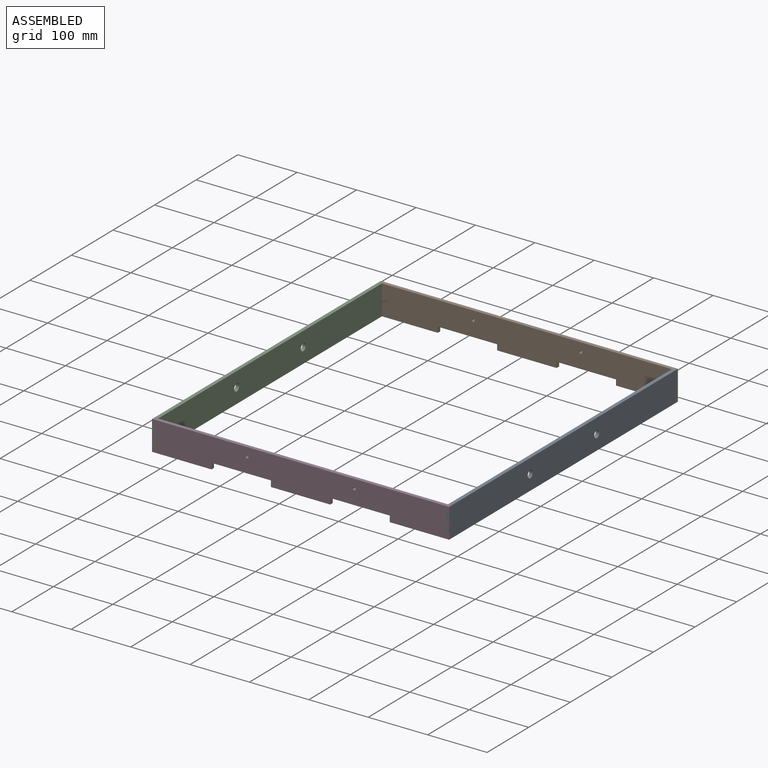
[diagram: assembled view]
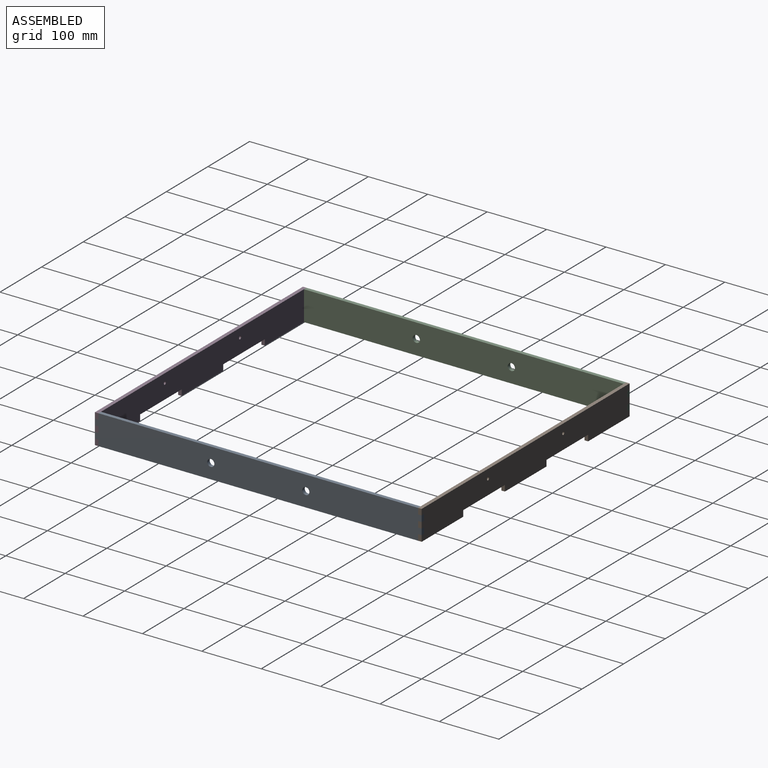
[diagram: assembled view, second angle]
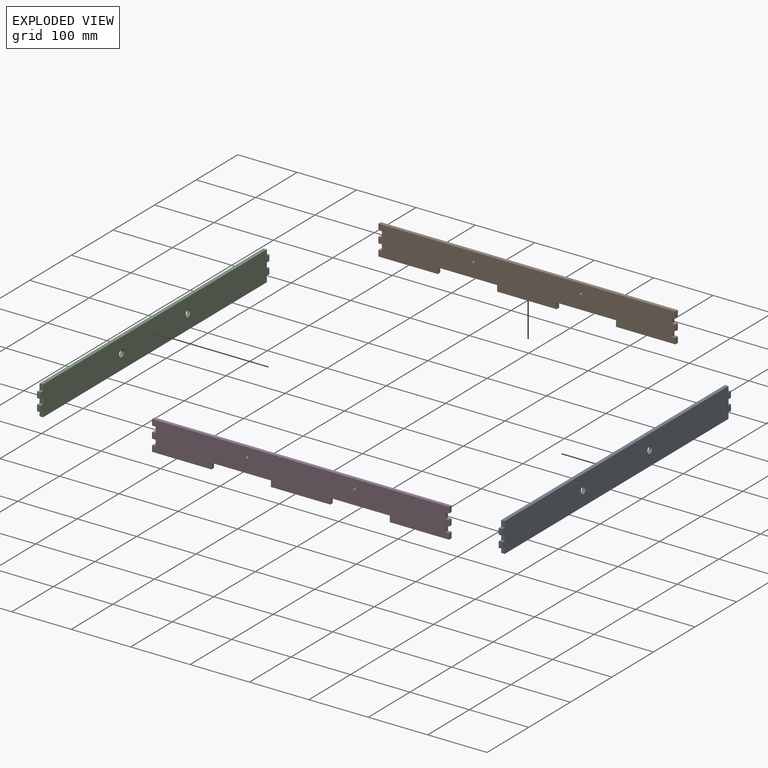
[diagram: exploded view]
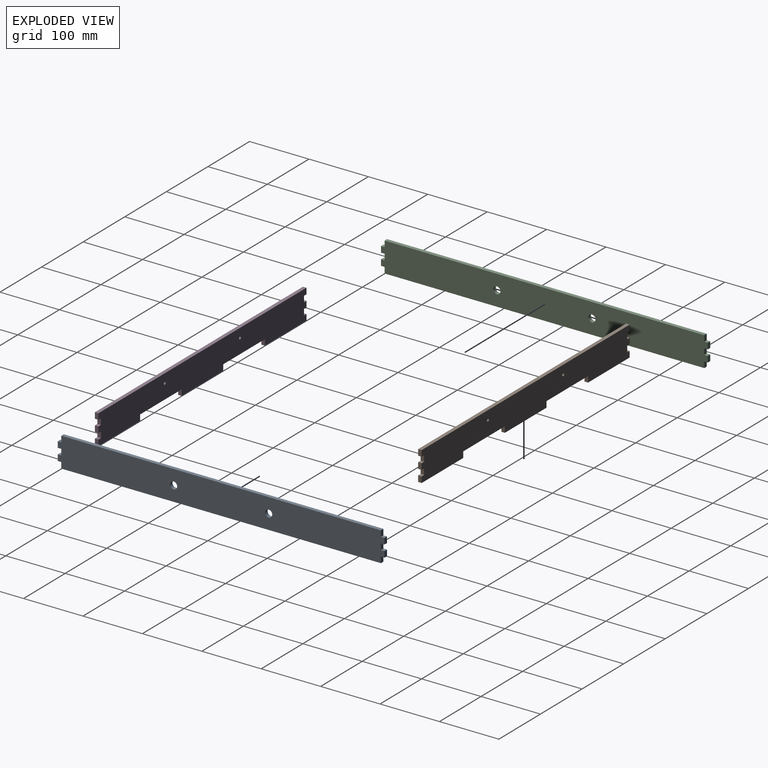
[diagram: exploded view, second angle]
ASSEMBLY  parts=4 mates=3
PART A: 24 faces, bbox 6x550x50 mm
  f0: plane 6x6mm, normal (0,0,1), area 36mm2, adj f1,f20,f22,f23
  f1: plane 10x6mm, normal (0,1,0), area 60mm2, adj f0,f2,f22,f23
  f2: plane 538x6mm, normal (0,0,1), area 3228mm2, adj f1,f3,f22,f23
  f3: plane 10x6mm, normal (0,-1,0), area 60mm2, adj f2,f4,f22,f23
  f4: plane 6x6mm, normal (0,0,1), area 36mm2, adj f3,f5,f22,f23
  f5: plane 10x6mm, normal (0,-1,0), area 60mm2, adj f4,f6,f22,f23
  f6: plane 6x6mm, normal (0,0,-1), area 36mm2, adj f5,f7,f22,f23
  f7: plane 10x6mm, normal (0,-1,0), area 60mm2, adj f6,f8,f22,f23
  f8: plane 6x6mm, normal (0,0,1), area 36mm2, adj f7,f9,f22,f23
  f9: plane 10x6mm, normal (0,-1,0), area 60mm2, adj f8,f10,f22,f23
  f10: plane 6x6mm, normal (0,0,-1), area 36mm2, adj f9,f11,f22,f23
  f11: plane 10x6mm, normal (0,-1,0), area 60mm2, adj f10,f12,f22,f23
  f12: plane 538x6mm, normal (0,0,-1), area 3228mm2, adj f11,f13,f22,f23
  f13: plane 10x6mm, normal (0,1,0), area 60mm2, adj f12,f14,f22,f23
  f14: plane 6x6mm, normal (0,0,-1), area 36mm2, adj f13,f15,f22,f23
  f15: plane 10x6mm, normal (0,1,0), area 60mm2, adj f14,f16,f22,f23
  f16: plane 6x6mm, normal (0,0,1), area 36mm2, adj f15,f17,f22,f23
  f17: plane 10x6mm, normal (0,1,0), area 60mm2, adj f16,f18,f22,f23
  f18: plane 6x6mm, normal (0,0,-1), area 36mm2, adj f17,f20,f22,f23
  f19: cylinder r=6mm len=12mm, axis (-1,0,0), area 226.2mm2, adj f22,f23
  f20: plane 10x6mm, normal (0,1,0), area 60mm2, adj f0,f18,f22,f23
  f21: cylinder r=6mm len=12mm, axis (-1,0,0), area 226.2mm2, adj f22,f23
  f22: plane 550x50mm, normal (1,0,0), area 26913.8mm2, adj f0,f1,f2,f3,f4,f5,f6,f7
  f23: plane 550x50mm, normal (-1,0,0), area 26913.8mm2, adj f0,f1,f2,f3,f4,f5,f6,f7
PART B: 32 faces, bbox 500x6x50 mm
  f0: plane 10x6mm, normal (1,0,0), area 60mm2, adj f1,f29,f30,f31
  f1: plane 100x6mm, normal (0,0,-1), area 600mm2, adj f0,f2,f30,f31
  f2: plane 10x6mm, normal (-1,0,0), area 60mm2, adj f1,f3,f30,f31
  f3: plane 100x6mm, normal (0,0,-1), area 600mm2, adj f2,f4,f30,f31
  f4: plane 10x6mm, normal (1,0,0), area 60mm2, adj f3,f5,f30,f31
  f5: plane 6x6mm, normal (0,0,1), area 36mm2, adj f4,f6,f30,f31
  f6: plane 10x6mm, normal (1,0,0), area 60mm2, adj f5,f7,f30,f31
  f7: plane 6x6mm, normal (0,0,-1), area 36mm2, adj f6,f8,f30,f31
  f8: plane 10x6mm, normal (1,0,0), area 60mm2, adj f7,f9,f30,f31
  f9: plane 6x6mm, normal (0,0,1), area 36mm2, adj f8,f10,f30,f31
  f10: plane 10x6mm, normal (1,0,0), area 60mm2, adj f9,f11,f30,f31
  f11: plane 6x6mm, normal (0,0,-1), area 36mm2, adj f10,f12,f30,f31
  f12: plane 10x6mm, normal (1,0,0), area 60mm2, adj f11,f13,f30,f31
  f13: plane 500x6mm, normal (0,0,1), area 3000mm2, adj f12,f14,f30,f31
  f14: plane 10x6mm, normal (-1,0,0), area 60mm2, adj f13,f15,f30,f31
  f15: plane 6x6mm, normal (0,0,-1), area 36mm2, adj f14,f16,f30,f31
  f16: plane 10x6mm, normal (-1,0,0), area 60mm2, adj f15,f17,f30,f31
  f17: plane 6x6mm, normal (0,0,1), area 36mm2, adj f16,f18,f30,f31
  f18: plane 10x6mm, normal (-1,0,0), area 60mm2, adj f17,f19,f30,f31
  f19: plane 6x6mm, normal (0,0,-1), area 36mm2, adj f18,f20,f30,f31
  f20: plane 10x6mm, normal (-1,0,0), area 60mm2, adj f19,f21,f30,f31
  f21: plane 6x6mm, normal (0,0,1), area 36mm2, adj f20,f22,f30,f31
  f22: plane 10x6mm, normal (-1,0,0), area 60mm2, adj f21,f23,f30,f31
  f23: plane 100x6mm, normal (0,0,-1), area 600mm2, adj f22,f24,f30,f31
  f24: plane 10x6mm, normal (1,0,0), area 60mm2, adj f23,f25,f30,f31
  f25: plane 100x6mm, normal (0,0,-1), area 600mm2, adj f24,f26,f30,f31
  f26: plane 10x6mm, normal (-1,0,0), area 60mm2, adj f25,f29,f30,f31
  f27: cylinder r=2.5mm len=6mm, axis (0,1,0), area 94.2mm2, adj f30,f31
  f28: cylinder r=2.5mm len=6mm, axis (0,1,0), area 94.2mm2, adj f30,f31
  f29: plane 100x6mm, normal (0,0,-1), area 600mm2, adj f0,f26,f30,f31
  f30: plane 500x50mm, normal (0,-1,0), area 22720.7mm2, adj f0,f1,f2,f3,f4,f5,f6,f7
  f31: plane 500x50mm, normal (0,1,0), area 22720.7mm2, adj f0,f1,f2,f3,f4,f5,f6,f7
PART C: same geometry as A
PART D: same geometry as B
PLACE A t=(212.75,228.19,-40.67)mm
PLACE B t=(-31.25,503.19,-40.67)mm
PLACE C t=(-281.25,228.19,-40.67)mm
PLACE D t=(-31.25,-40.81,-40.67)mm
MATE planar B.f5 <-> A.f14  axis (0,0,1) through (215.75,500.19,-55.67)mm
MATE planar A.f4 <-> D.f11  axis (0,0,1) through (215.75,-43.81,-25.67)mm
MATE planar C.f0 <-> B.f15  axis (0,0,1) through (-278.25,500.19,-25.67)mm
